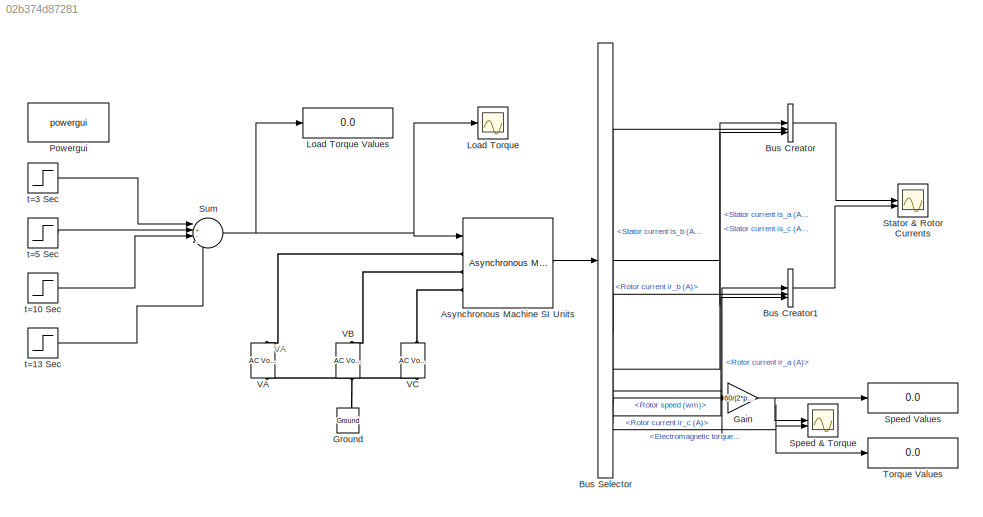
MODEL slx_02b374d87281
KIND model
CONFIG AbsTol = auto
CONFIG EnableMultiTasking = off
CONFIG FixedStep = auto
CONFIG MaxStep = auto
CONFIG MinStep = auto
CONFIG RelTol = 1e-3
CONFIG SampleTimeConstraint = Unconstrained
CONFIG SolverName = VariableStepAuto
CONFIG StartTime = 0.0
CONFIG StopTime = 15
BLOCK [Reference] Asynchronous Machine SI Units  REF=spsAsynchronousMachineSIUnitsLib/Asynchronous Machine
SI Units
  LibrarySourceBlock = sps_lib/Electrical Machines/Asynchronous Machine\nSI Units
  SourceBlock = spsAsynchronousMachineSIUnitsLib/Asynchronous Machine\nSI Units
  SourceType = Asynchronous Machine
BLOCK [BusCreator] Bus Creator
  DisplayOption = bar
  InheritFromInputs = on
  Inputs = 3
BLOCK [BusCreator] Bus Creator1
  DisplayOption = bar
  InheritFromInputs = on
  Inputs = 3
BLOCK [BusSelector] Bus Selector
  OutputSignals = Stator measurements.Stator current is_a (A),Stator measurements.Stator current is_b (A),Stator measurements.Stator current is_c (A),Rotor measurements.Rotor current ir_a (A),Rotor measurements.Rotor current ir_b (A),Rotor measurements.Rotor current ir_c (A),Mechanical.Rotor speed (wm),Mechanical.Electromagnetic torque Te (N*m)
BLOCK [Gain] Gain
  Gain = 60/(2*pi)
BLOCK [Reference] Ground  REF=spsGroundLib/Ground
  LibrarySourceBlock = sps_lib/Utilities/Ground
  NameLocation = right
  SourceBlock = spsGroundLib/Ground
  SourceType = Ground
BLOCK [Scope] Load Torque
  Floating = off
  NumInputPorts = 1
  ScopeSpecificationString = Simulink.scopes.TimeScopeBlockCfg('CurrentConfiguration', extmgr.ConfigurationSet(extmgr.Configuration('Core','General UI',true),extmgr.Configuration('Core','Source UI',true),extmgr.Configuration('Sources','WiredSimulink',true),extmgr.Configuration('Visuals','Time Domain',true,'SerializedDisplays',{struct('MinYLimReal','-5.01','MaxYLimReal','45.09','YLabelReal','','MinYLimMag','0.00000','MaxYLimMa...<+1309ch>
BLOCK [Display] Load Torque Values
  Decimation = 1
BLOCK [Reference] Powergui  REF=sps_lib/powergui
  Priority = 1
  SourceBlock = sps_lib/powergui
  SourceType = PSB option menu block
BLOCK [Scope] Speed & Torque
  Floating = off
  NumInputPorts = 2
  ScopeSpecificationString = Simulink.scopes.TimeScopeBlockCfg('CurrentConfiguration', extmgr.ConfigurationSet(extmgr.Configuration('Core','General UI',true),extmgr.Configuration('Core','Source UI',true),extmgr.Configuration('Sources','WiredSimulink',true,'DataLoggingVariableName','ScopeData3'),extmgr.Configuration('Visuals','Time Domain',true,'SerializedDisplays',{struct('MinYLimReal','922.15168','MaxYLimReal','1926.97697','...<+2152ch>
BLOCK [Display] Speed Values
  Decimation = 1
BLOCK [Scope] Stator & Rotor Currents
  Floating = off
  NumInputPorts = 2
  ScopeSpecificationString = Simulink.scopes.TimeScopeBlockCfg('CurrentConfiguration', extmgr.ConfigurationSet(extmgr.Configuration('Core','General UI',true),extmgr.Configuration('Core','Source UI',true),extmgr.Configuration('Sources','WiredSimulink',true,'DataLoggingVariableName','ScopeData4'),extmgr.Configuration('Visuals','Time Domain',true,'SerializedDisplays',{struct('MinYLimReal','-11.86121','MaxYLimReal','13.91153','YL...<+2298ch>
BLOCK [Sum] Sum
  Inputs = |+---
BLOCK [Display] Torque Values
  Decimation = 1
BLOCK [Reference] VA  REF=spsACVoltageSourceLib/AC Voltage Source
  LibrarySourceBlock = sps_lib/Sources/AC Voltage Source
  NameLocation = right
  SourceBlock = spsACVoltageSourceLib/AC Voltage Source
  SourceType = AC Voltage Source
BLOCK [Reference] VB  REF=spsACVoltageSourceLib/AC Voltage Source
  LibrarySourceBlock = sps_lib/Sources/AC Voltage Source
  NameLocation = right
  SourceBlock = spsACVoltageSourceLib/AC Voltage Source
  SourceType = AC Voltage Source
BLOCK [Reference] VC  REF=spsACVoltageSourceLib/AC Voltage Source
  LibrarySourceBlock = sps_lib/Sources/AC Voltage Source
  NameLocation = right
  SourceBlock = spsACVoltageSourceLib/AC Voltage Source
  SourceType = AC Voltage Source
BLOCK [Step] t=10 Sec
  After = 6.68
  SampleTime = 0
  Time = 10
BLOCK [Step] t=13 Sec
  After = 6.68
  SampleTime = 0
  Time = 13
BLOCK [Step] t=3 Sec
  After = 26.72
  SampleTime = 0
  Time = 3
BLOCK [Step] t=5 Sec
  After = 13.36
  SampleTime = 0
  Time = 5
ANNOTATION (root): VA
LINE Asynchronous Machine SI Units:1 -> Bus Selector:1
LINE Bus Creator1:1 -> Stator & Rotor Currents:2
LINE Bus Creator:1 -> Stator & Rotor Currents:1
LINE Bus Selector:1 -> Bus Creator:1
LINE Bus Selector:2 -> Bus Creator:2
LINE Bus Selector:3 -> Bus Creator:3
LINE Bus Selector:4 -> Bus Creator1:1
LINE Bus Selector:5 -> Bus Creator1:2
LINE Bus Selector:6 -> Bus Creator1:3
LINE Bus Selector:7 -> Gain:1
NET Bus Selector:8 -> Speed & Torque:2, Torque Values:1
NET Gain:1 -> Speed & Torque:1, Speed Values:1
NET Sum:1 -> Asynchronous Machine SI Units:1, Load Torque Values:1, Load Torque:1
LINE t=10 Sec:1 -> Sum:3
LINE t=13 Sec:1 -> Sum:4
LINE t=3 Sec:1 -> Sum:1
LINE t=5 Sec:1 -> Sum:2
PLINE Asynchronous Machine SI Units:LConn1 -- VA:RConn1
PLINE Asynchronous Machine SI Units:LConn2 -- VB:RConn1
PLINE Asynchronous Machine SI Units:LConn3 -- VC:RConn1
PNET net1: Ground:LConn1 -- VA:LConn1 -- VB:LConn1 -- VC:LConn1
note: NET lines group one-source signal fan-out (src -> all destinations, sorted); 1:1 wires keep LINE; PNET lines group multi-terminal physical nets as a canonical sorted terminal list (undirected conserving connections); 2-terminal nets keep the pairwise PLINE form
